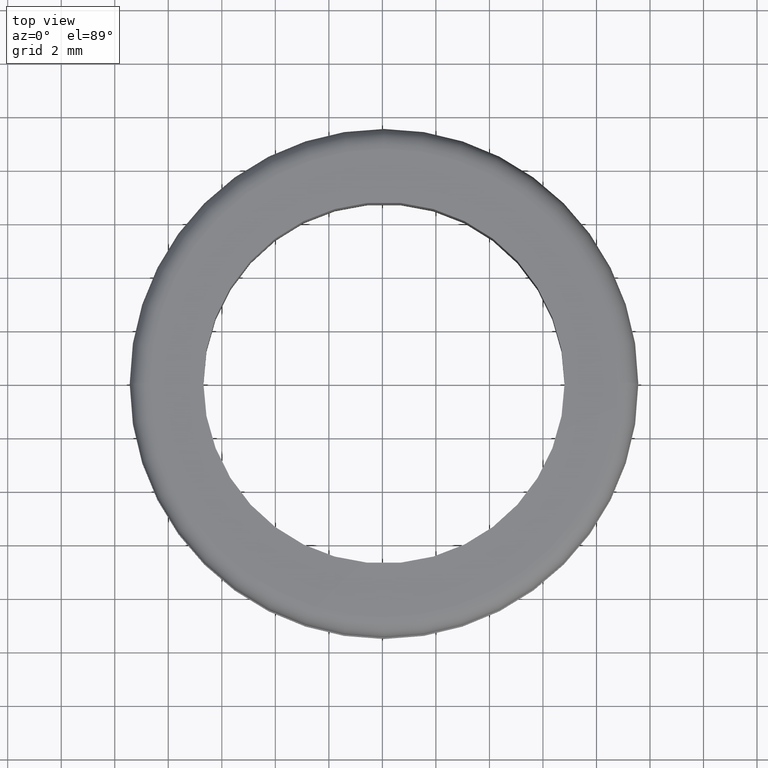
[diagram: clean part render]
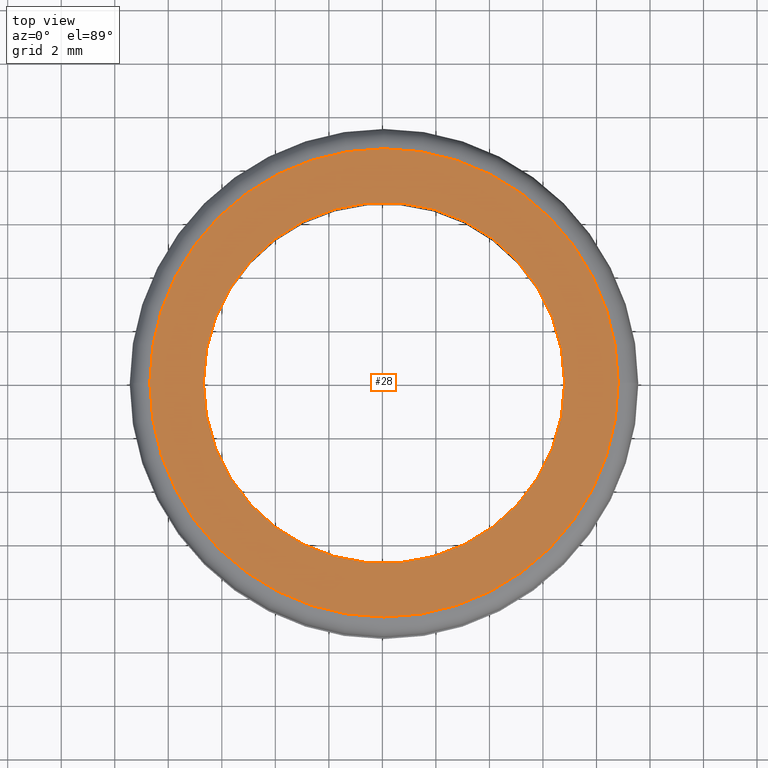
[diagram: same view with one face highlighted and labeled with its STEP entity id]
A machine part, top view. The second image highlights one B-rep face of the part: STEP entity #28.
In plain terms, the highlighted planar face has unit normal (0, 0, -1).
Its self-contained STEP definition (entity closure, byte-faithful):
#4 = EDGE_CURVE ( 'NONE', #463, #54, #253, .T. ) ;
#9 = ORIENTED_EDGE ( 'NONE', *, *, #4, .F. ) ;
#16 = AXIS2_PLACEMENT_3D ( 'NONE', #374, #149, #477 ) ;
#22 = CIRCLE ( 'NONE', #16, 8.749999999876093800 ) ;
#28 = ADVANCED_FACE ( 'NONE', ( #285, #240 ), #32, .F. ) ;
#32 = PLANE ( 'NONE',  #277 ) ;
#41 = EDGE_CURVE ( 'NONE', #308, #303, #168, .T. ) ;
#43 = CARTESIAN_POINT ( 'NONE',  ( 112.8108550663360900, 8.266365894268762600E-016, 142.7002122310740000 ) ) ;
#45 = EDGE_LOOP ( 'NONE', ( #9, #453 ) ) ;
#46 = AXIS2_PLACEMENT_3D ( 'NONE', #115, #337, #76 ) ;
#54 = VERTEX_POINT ( 'NONE', #224 ) ;
#76 = DIRECTION ( 'NONE',  ( -1.000000000000000000, 0.0000000000000000000, 0.0000000000000000000 ) ) ;
#93 = EDGE_CURVE ( 'NONE', #54, #463, #22, .T. ) ;
#103 = EDGE_CURVE ( 'NONE', #303, #308, #420, .T. ) ;
#107 = DIRECTION ( 'NONE',  ( 0.0000000000000000000, 0.0000000000000000000, -1.000000000000000000 ) ) ;
#112 = CARTESIAN_POINT ( 'NONE',  ( 106.0608550663163900, 0.0000000000000000000, 142.7002122310740000 ) ) ;
#115 = CARTESIAN_POINT ( 'NONE',  ( 106.0608550663163900, 0.0000000000000000000, 142.7002122310740000 ) ) ;
#149 = DIRECTION ( 'NONE',  ( 0.0000000000000000000, 0.0000000000000000000, -1.000000000000000000 ) ) ;
#154 = AXIS2_PLACEMENT_3D ( 'NONE', #475, #193, #441 ) ;
#168 = CIRCLE ( 'NONE', #249, 6.750000000019698900 ) ;
#184 = DIRECTION ( 'NONE',  ( 0.0000000000000000000, 0.0000000000000000000, -1.000000000000000000 ) ) ;
#193 = DIRECTION ( 'NONE',  ( 0.0000000000000000000, 0.0000000000000000000, -1.000000000000000000 ) ) ;
#224 = CARTESIAN_POINT ( 'NONE',  ( 114.8108550661924900, 1.117490204206784700E-015, 142.7002122310740000 ) ) ;
#240 = FACE_BOUND ( 'NONE', #385, .T. ) ;
#243 = CARTESIAN_POINT ( 'NONE',  ( 97.31085506644029700, 0.0000000000000000000, 142.7002122310740000 ) ) ;
#249 = AXIS2_PLACEMENT_3D ( 'NONE', #112, #107, #371 ) ;
#253 = CIRCLE ( 'NONE', #154, 8.749999999876093800 ) ;
#277 = AXIS2_PLACEMENT_3D ( 'NONE', #471, #184, #401 ) ;
#279 = ORIENTED_EDGE ( 'NONE', *, *, #103, .T. ) ;
#285 = FACE_OUTER_BOUND ( 'NONE', #45, .T. ) ;
#302 = CARTESIAN_POINT ( 'NONE',  ( 99.31085506629669600, 0.0000000000000000000, 142.7002122310740000 ) ) ;
#303 = VERTEX_POINT ( 'NONE', #43 ) ;
#306 = ORIENTED_EDGE ( 'NONE', *, *, #41, .T. ) ;
#308 = VERTEX_POINT ( 'NONE', #302 ) ;
#337 = DIRECTION ( 'NONE',  ( 0.0000000000000000000, 0.0000000000000000000, -1.000000000000000000 ) ) ;
#371 = DIRECTION ( 'NONE',  ( -1.000000000000000000, 0.0000000000000000000, 0.0000000000000000000 ) ) ;
#374 = CARTESIAN_POINT ( 'NONE',  ( 106.0608550663163900, 0.0000000000000000000, 142.7002122310740000 ) ) ;
#385 = EDGE_LOOP ( 'NONE', ( #306, #279 ) ) ;
#401 = DIRECTION ( 'NONE',  ( -1.000000000000000000, 0.0000000000000000000, 0.0000000000000000000 ) ) ;
#420 = CIRCLE ( 'NONE', #46, 6.750000000019698900 ) ;
#441 = DIRECTION ( 'NONE',  ( -1.000000000000000000, 0.0000000000000000000, 0.0000000000000000000 ) ) ;
#453 = ORIENTED_EDGE ( 'NONE', *, *, #93, .F. ) ;
#463 = VERTEX_POINT ( 'NONE', #243 ) ;
#471 = CARTESIAN_POINT ( 'NONE',  ( 112.8108550663362000, 0.0000000000000000000, 142.7002122310740000 ) ) ;
#475 = CARTESIAN_POINT ( 'NONE',  ( 106.0608550663163900, 0.0000000000000000000, 142.7002122310740000 ) ) ;
#477 = DIRECTION ( 'NONE',  ( -1.000000000000000000, 0.0000000000000000000, 0.0000000000000000000 ) ) ;